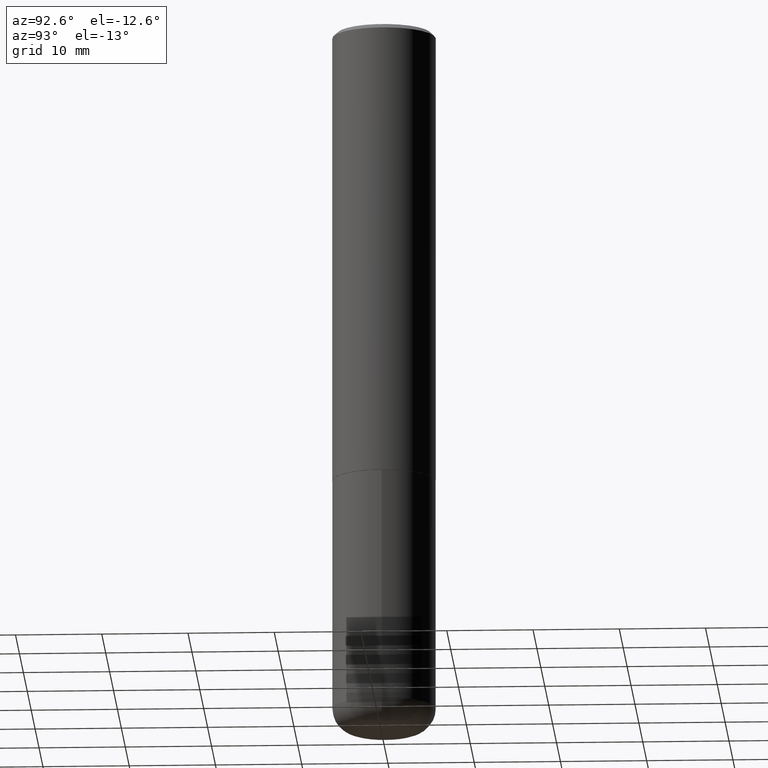
[diagram: clean part render]
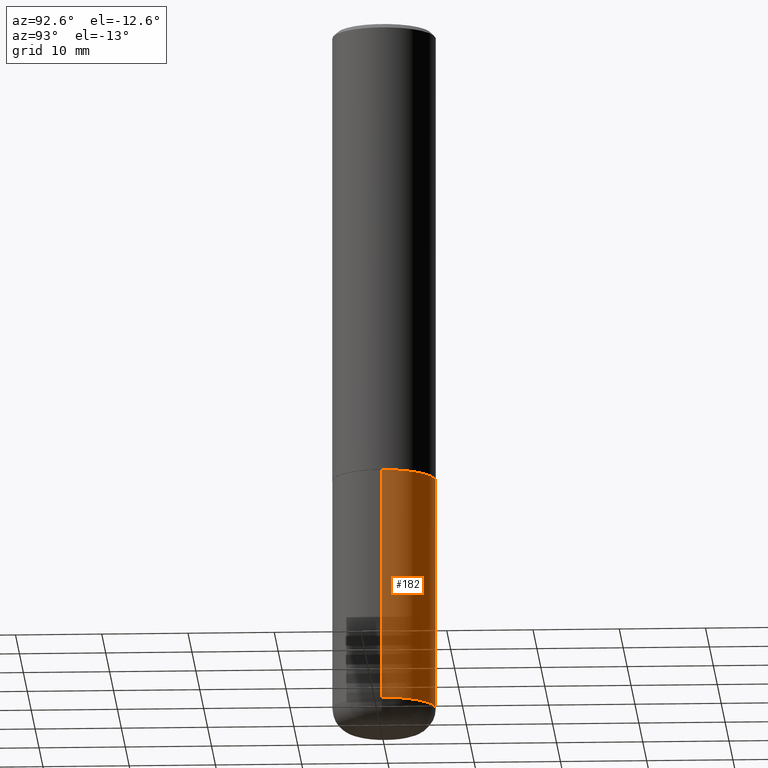
[diagram: same view with one face highlighted and labeled with its STEP entity id]
A machine part, auxiliary view. The second image highlights one B-rep face of the part: STEP entity #182.
In plain terms, the highlighted cylindrical surface (partial cylindrical patch) has radius 5.9995 mm, axis along (-0, 0, 1).
Its self-contained STEP definition (entity closure, byte-faithful):
#14 = CYLINDRICAL_SURFACE ( 'NONE', #213, 0.2361999999999999933 ) ;
#20 = CARTESIAN_POINT ( 'NONE',  ( 0.2361999999999999933, -1.649375784469496131E-15, 1.151752954443000088E-29 ) ) ;
#23 = DIRECTION ( 'NONE',  ( 1.000000000000000000, -6.982962677686265133E-15, 0.000000000000000000 ) ) ;
#34 = CARTESIAN_POINT ( 'NONE',  ( -0.2361999999999999933, -7.462745351359882680E-15, -2.086600000000000232 ) ) ;
#38 = VERTEX_POINT ( 'NONE', #336 ) ;
#42 = VECTOR ( 'NONE', #275, 39.37007874015748143 ) ;
#54 = CARTESIAN_POINT ( 'NONE',  ( -0.2361999999999998545, -9.318467682955017493E-15, -3.149600000000000399 ) ) ;
#56 = CARTESIAN_POINT ( 'NONE',  ( 0.2361999999999999933, -8.934700746099602364E-15, -2.086600000000000232 ) ) ;
#63 = VERTEX_POINT ( 'NONE', #34 ) ;
#65 = EDGE_CURVE ( 'NONE', #264, #63, #332, .T. ) ;
#96 = ORIENTED_EDGE ( 'NONE', *, *, #65, .F. ) ;
#104 = ORIENTED_EDGE ( 'NONE', *, *, #344, .T. ) ;
#106 = AXIS2_PLACEMENT_3D ( 'NONE', #163, #294, #23 ) ;
#110 = EDGE_CURVE ( 'NONE', #289, #63, #143, .T. ) ;
#118 = CARTESIAN_POINT ( 'NONE',  ( 0.000000000000000000, 0.000000000000000000, 0.000000000000000000 ) ) ;
#143 = LINE ( 'NONE', #337, #42 ) ;
#145 = EDGE_CURVE ( 'NONE', #38, #264, #178, .T. ) ;
#163 = CARTESIAN_POINT ( 'NONE',  ( 5.102715210985906276E-29, -7.285324961630107416E-15, -2.086600000000000232 ) ) ;
#172 = ORIENTED_EDGE ( 'NONE', *, *, #110, .T. ) ;
#178 = LINE ( 'NONE', #20, #400 ) ;
#182 = ADVANCED_FACE ( 'NONE', ( #409 ), #14, .T. ) ;
#190 = ORIENTED_EDGE ( 'NONE', *, *, #145, .F. ) ;
#213 = AXIS2_PLACEMENT_3D ( 'NONE', #118, #215, #277 ) ;
#215 = DIRECTION ( 'NONE',  ( -2.445468806185136597E-29, 3.491481338843145583E-15, 1.000000000000000000 ) ) ;
#224 = AXIS2_PLACEMENT_3D ( 'NONE', #322, #287, #414 ) ;
#240 = EDGE_LOOP ( 'NONE', ( #104, #172, #96, #190 ) ) ;
#264 = VERTEX_POINT ( 'NONE', #56 ) ;
#275 = DIRECTION ( 'NONE',  ( -2.445468806185136877E-29, 3.491481338843145188E-15, 1.000000000000000000 ) ) ;
#277 = DIRECTION ( 'NONE',  ( 1.000000000000000000, -6.982962677686266711E-15, 4.876176775795936353E-29 ) ) ;
#287 = DIRECTION ( 'NONE',  ( -2.445468806185136597E-29, 3.491481338843145583E-15, 1.000000000000000000 ) ) ;
#289 = VERTEX_POINT ( 'NONE', #54 ) ;
#294 = DIRECTION ( 'NONE',  ( -2.445468806185136597E-29, 3.491481338843145583E-15, 1.000000000000000000 ) ) ;
#322 = CARTESIAN_POINT ( 'NONE',  ( 7.702248551960706711E-29, -1.099676962482037231E-14, -3.149600000000000399 ) ) ;
#332 = CIRCLE ( 'NONE', #106, 0.2361999999999999933 ) ;
#336 = CARTESIAN_POINT ( 'NONE',  ( 0.2361999999999998545, -1.264614540928986883E-14, -3.149600000000000399 ) ) ;
#337 = CARTESIAN_POINT ( 'NONE',  ( -0.2361999999999999933, 1.678301941865356591E-15, -1.161852468318208757E-29 ) ) ;
#344 = EDGE_CURVE ( 'NONE', #38, #289, #406, .T. ) ;
#375 = DIRECTION ( 'NONE',  ( -2.445468806185136877E-29, 3.491481338843145188E-15, 1.000000000000000000 ) ) ;
#400 = VECTOR ( 'NONE', #375, 39.37007874015748143 ) ;
#406 = CIRCLE ( 'NONE', #224, 0.2361999999999999933 ) ;
#409 = FACE_OUTER_BOUND ( 'NONE', #240, .T. ) ;
#414 = DIRECTION ( 'NONE',  ( 1.000000000000000000, -6.982962677686265133E-15, 0.000000000000000000 ) ) ;